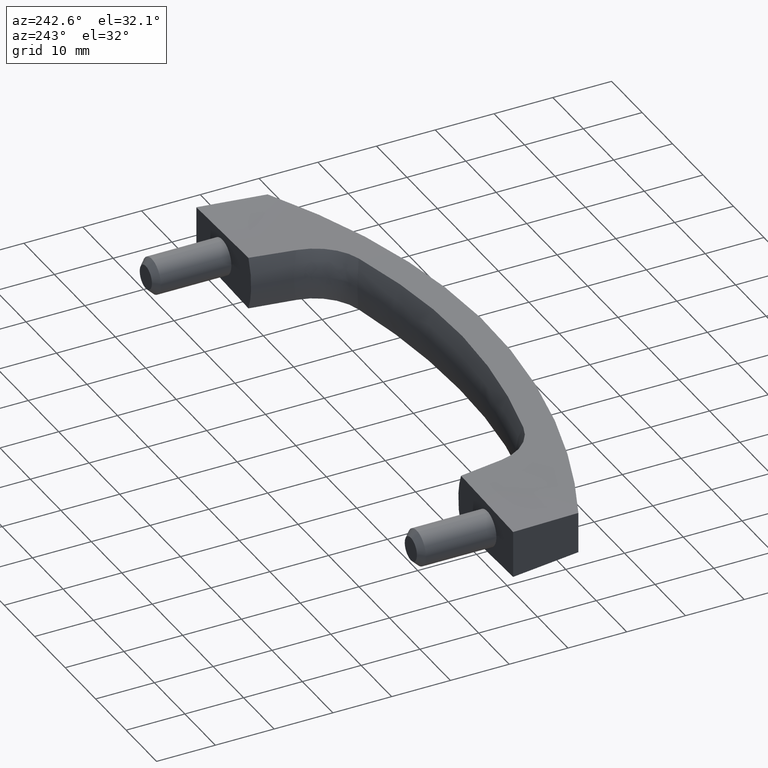
[diagram: clean part render]
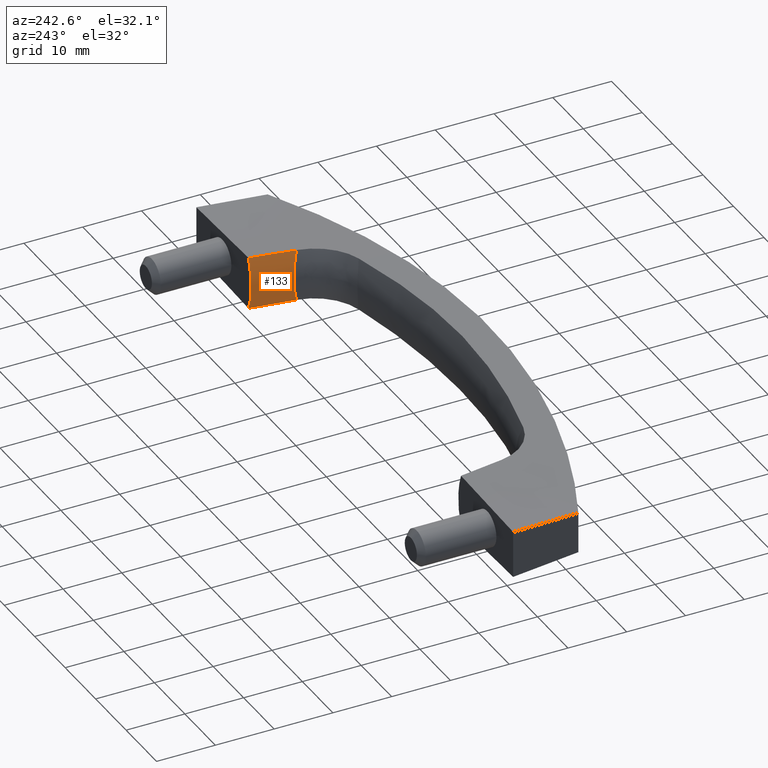
[diagram: same view with one face highlighted and labeled with its STEP entity id]
A machine part, auxiliary view. The second image highlights one B-rep face of the part: STEP entity #133.
In plain terms, the highlighted cylindrical surface (partial cylindrical patch) has radius 12 mm, axis along (0.1652, 0.9863, 0).
Its self-contained STEP definition (entity closure, byte-faithful):
#133=ADVANCED_FACE('',(#268),#267,.T.);
#267=CYLINDRICAL_SURFACE('',#464,1.20000000000E+01);
#268=FACE_OUTER_BOUND('',#465,.T.);
#461=CARTESIAN_POINT('',(4.58921555966E+01,2.23224950236E-14,1.64497305528E+00));
#462=DIRECTION('',(1.65214335400E-01,3.17637355220E-16,-9.86257686093E-01));
#463=DIRECTION('',(8.99622857908E-01,-4.09838684130E-01,1.50701581012E-01));
#464=AXIS2_PLACEMENT_3D('',#461,#462,#463);
#465=EDGE_LOOP('',(#736,#737,#738,#739));
#736=ORIENTED_EDGE('',*,*,#843,.T.);
#737=ORIENTED_EDGE('',*,*,#827,.T.);
#738=ORIENTED_EDGE('',*,*,#844,.T.);
#739=ORIENTED_EDGE('',*,*,#845,.F.);
#827=EDGE_CURVE('',#1047,#1048,#1049,.T.);
#843=EDGE_CURVE('',#1158,#1047,#1159,.T.);
#844=EDGE_CURVE('',#1048,#1165,#1166,.T.);
#845=EDGE_CURVE('',#1158,#1165,#1172,.T.);
#1047=VERTEX_POINT('',#1405);
#1048=VERTEX_POINT('',#1406);
#1049=(BOUNDED_CURVE() B_SPLINE_CURVE(2,(#1407,#1408,#1409),.UNSPECIFIED.,.F.,.F.) B_SPLINE_CURVE_WITH_KNOTS((3,3),(0.00000000000E+00,1.00000000000E+00),.UNSPECIFIED.) CURVE() GEOMETRIC_REPRESENTATION_ITEM() RATIONAL_B_SPLINE_CURVE((1.00000000000E+00,9.26820489205E-01,1.00000000000E+00)) REPRESENTATION_ITEM('') );
#1158=VERTEX_POINT('',#1607);
#1159=(BOUNDED_CURVE() B_SPLINE_CURVE(3,(#1608,#1609,#1610,#1611),.UNSPECIFIED.,.F.,.F.) B_SPLINE_CURVE_WITH_KNOTS((4,4),(3.12919295445E-04,7.93070046308E-03),.UNSPECIFIED.) CURVE() GEOMETRIC_REPRESENTATION_ITEM() RATIONAL_B_SPLINE_CURVE((1.00000000000E+00,1.00000000000E+00,1.00000000000E+00,1.00000000000E+00)) REPRESENTATION_ITEM('') );
#1165=VERTEX_POINT('',#1612);
#1166=(BOUNDED_CURVE() B_SPLINE_CURVE(3,(#1613,#1614,#1615,#1616),.UNSPECIFIED.,.F.,.F.) B_SPLINE_CURVE_WITH_KNOTS((4,4),(0.00000000000E+00,7.61735183875E-03),.UNSPECIFIED.) CURVE() GEOMETRIC_REPRESENTATION_ITEM() RATIONAL_B_SPLINE_CURVE((1.00000000000E+00,1.00000000000E+00,1.00000000000E+00,1.00000000000E+00)) REPRESENTATION_ITEM('') );
#1172=(BOUNDED_CURVE() B_SPLINE_CURVE(3,(#1617,#1618,#1619,#1620,#1621,#1622,#1623,#1624,#1625,#1626),.UNSPECIFIED.,.F.,.F.) B_SPLINE_CURVE_WITH_KNOTS((4,2,2,2,4),(9.39908681399E-03,1.04825952617E-02,1.33334647073E-02,1.61843341529E-02,1.72654891420E-02),.UNSPECIFIED.) CURVE() GEOMETRIC_REPRESENTATION_ITEM() RATIONAL_B_SPLINE_CURVE((1.00000000000E+00,1.00000000000E+00,1.00000000000E+00,1.00000000000E+00,1.00000000000E+00,1.00000000000E+00,1.00000000000E+00,1.00000000000E+00,1.00000000000E+00,1.00000000000E+00)) REPRESENTATION_ITEM('') );
#1405=CARTESIAN_POINT('',(3.48909001505E+01,4.50605641706E+00,1.00049200000E-13));
#1406=CARTESIAN_POINT('',(3.48909001505E+01,-4.50605641706E+00,2.66798000000E-13));
#1407=CARTESIAN_POINT('',(3.48909001505E+01,4.50605641706E+00,1.00049200000E-13));
#1408=CARTESIAN_POINT('',(3.30398167904E+01,6.08689500000E-15,1.79161200000E-11));
#1409=CARTESIAN_POINT('',(3.48909001505E+01,-4.50605641706E+00,2.66798000000E-13));
#1607=CARTESIAN_POINT('',(3.36079919887E+01,4.44234619461E+00,7.50870683689E+00));
#1608=CARTESIAN_POINT('',(3.36079919887E+01,4.44234619461E+00,7.50870683689E+00));
#1609=CARTESIAN_POINT('',(3.40356480483E+01,4.46381134457E+00,5.00580992580E+00));
#1610=CARTESIAN_POINT('',(3.44632329508E+01,4.48491619597E+00,2.50289777037E+00));
#1611=CARTESIAN_POINT('',(3.48909001505E+01,4.50605641706E+00,1.00049200000E-13));
#1612=CARTESIAN_POINT('',(3.36077143909E+01,-4.44236560942E+00,7.50822396491E+00));
#1613=CARTESIAN_POINT('',(3.48909001505E+01,-4.50605641706E+00,2.66798000000E-13));
#1614=CARTESIAN_POINT('',(3.44631404188E+01,-4.48492264926E+00,2.50273681300E+00));
#1615=CARTESIAN_POINT('',(3.40354629793E+01,-4.46382425774E+00,5.00548801024E+00));
#1616=CARTESIAN_POINT('',(3.36077143909E+01,-4.44236560942E+00,7.50822396491E+00));
#1617=CARTESIAN_POINT('',(3.36079919887E+01,4.44234619461E+00,7.50870683689E+00));
#1618=CARTESIAN_POINT('',(3.34817898410E+01,4.06805428581E+00,7.35739402988E+00));
#1619=CARTESIAN_POINT('',(3.33687618457E+01,3.68122838872E+00,7.22699393425E+00));
#1620=CARTESIAN_POINT('',(3.30196202607E+01,2.24714156865E+00,6.83974667419E+00));
#1621=CARTESIAN_POINT('',(3.28769683031E+01,1.13565964133E+00,6.70835322455E+00));
#1622=CARTESIAN_POINT('',(3.28762857523E+01,-1.12612449107E+00,6.70717297390E+00));
#1623=CARTESIAN_POINT('',(3.30166625592E+01,-2.23250769471E+00,6.83470095313E+00));
#1624=CARTESIAN_POINT('',(3.33686758733E+01,-3.68093806182E+00,7.22679730359E+00));
#1625=CARTESIAN_POINT('',(3.34817242025E+01,-4.06844351877E+00,7.35724045392E+00));
#1626=CARTESIAN_POINT('',(3.36077143909E+01,-4.44236560942E+00,7.50822396491E+00));